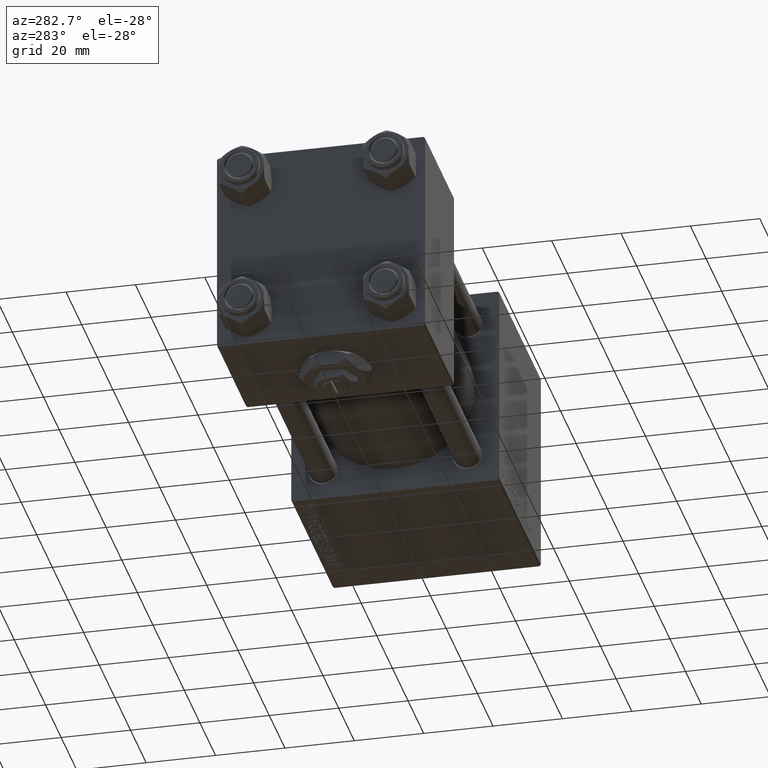
[diagram: clean part render]
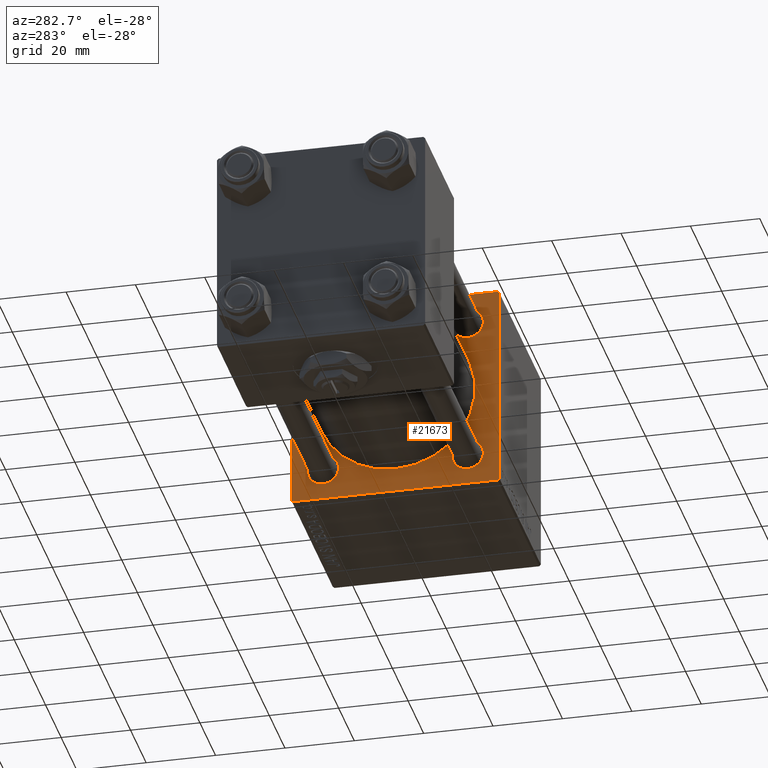
[diagram: same view with one face highlighted and labeled with its STEP entity id]
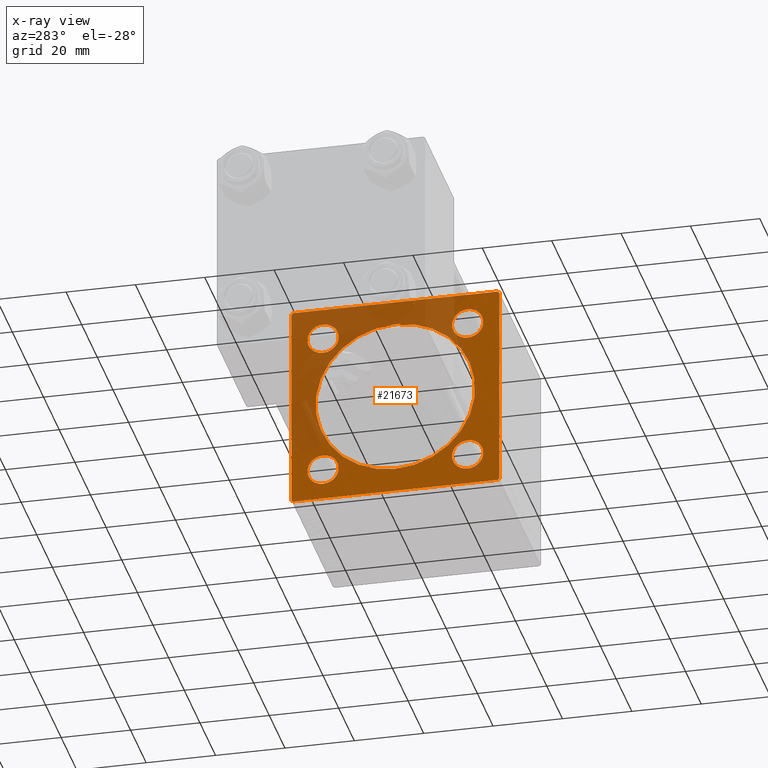
[diagram: x-ray of the same camera — body ghosted, the highlighted face saturated]
A machine part, auxiliary view. The second image highlights one B-rep face of the part: STEP entity #21673.
The next image is the same camera in x-ray: the body ghosted, the highlighted face saturated — about 41% of this face is hidden behind the body in this view.
In plain terms, the highlighted planar face has unit normal (-1, 0, 0).
Its self-contained STEP definition (entity closure, byte-faithful):
#50 = FACE_BOUND ( 'NONE', #23976, .T. ) ;
#277 = EDGE_LOOP ( 'NONE', ( #18970, #2899 ) ) ;
#504 = VERTEX_POINT ( 'NONE', #15559 ) ;
#520 = VECTOR ( 'NONE', #14759, 1000.000000000000114 ) ;
#569 = FACE_BOUND ( 'NONE', #39215, .T. ) ;
#674 = VECTOR ( 'NONE', #3492, 1000.000000000000000 ) ;
#1126 = DIRECTION ( 'NONE',  ( 1.000000000000000000, 0.000000000000000000, 0.000000000000000000 ) ) ;
#1169 = EDGE_CURVE ( 'NONE', #29317, #51760, #24532, .T. ) ;
#1211 = CARTESIAN_POINT ( 'NONE',  ( 95.00000000000000000, -30.00000000000000000, 29.49999999999999289 ) ) ;
#1345 = CARTESIAN_POINT ( 'NONE',  ( 95.00000000000000000, -2.602085213965210642E-15, 23.00000000000000000 ) ) ;
#1467 = ORIENTED_EDGE ( 'NONE', *, *, #45037, .T. ) ;
#1657 = EDGE_LOOP ( 'NONE', ( #38635, #3992, #32586, #19109, #34009, #50898, #23393, #1467 ) ) ;
#2848 = DIRECTION ( 'NONE',  ( 0.000000000000000000, 0.000000000000000000, 1.000000000000000000 ) ) ;
#2899 = ORIENTED_EDGE ( 'NONE', *, *, #32178, .T. ) ;
#3244 = CARTESIAN_POINT ( 'NONE',  ( 95.00000000000000000, 20.84999999999999787, 20.85000000000000142 ) ) ;
#3492 = DIRECTION ( 'NONE',  ( 0.000000000000000000, 0.000000000000000000, -1.000000000000000000 ) ) ;
#3681 = CIRCLE ( 'NONE', #13768, 4.500000000000007105 ) ;
#3992 = ORIENTED_EDGE ( 'NONE', *, *, #1169, .T. ) ;
#4001 = DIRECTION ( 'NONE',  ( -1.000000000000000000, 0.000000000000000000, -0.000000000000000000 ) ) ;
#4214 = VERTEX_POINT ( 'NONE', #50271 ) ;
#4216 = CARTESIAN_POINT ( 'NONE',  ( 95.00000000000000000, 30.00000000000000000, -29.99999999999999289 ) ) ;
#4223 = DIRECTION ( 'NONE',  ( 0.000000000000000000, 0.7071067811865474617, -0.7071067811865474617 ) ) ;
#4427 = LINE ( 'NONE', #28582, #35736 ) ;
#4642 = VERTEX_POINT ( 'NONE', #48917 ) ;
#4809 = DIRECTION ( 'NONE',  ( 1.000000000000000000, -0.000000000000000000, 0.000000000000000000 ) ) ;
#5331 = CARTESIAN_POINT ( 'NONE',  ( 95.00000000000000000, -29.50000000000000000, -30.00000000000000000 ) ) ;
#5362 = DIRECTION ( 'NONE',  ( 1.000000000000000000, -0.000000000000000000, 0.000000000000000000 ) ) ;
#5587 = DIRECTION ( 'NONE',  ( 0.000000000000000000, 0.000000000000000000, -1.000000000000000000 ) ) ;
#5749 = DIRECTION ( 'NONE',  ( -0.000000000000000000, 0.000000000000000000, 1.000000000000000000 ) ) ;
#5902 = DIRECTION ( 'NONE',  ( 1.000000000000000000, -0.000000000000000000, 0.000000000000000000 ) ) ;
#6193 = CIRCLE ( 'NONE', #21294, 4.500000000000007105 ) ;
#6597 = VERTEX_POINT ( 'NONE', #18314 ) ;
#7857 = VERTEX_POINT ( 'NONE', #10888 ) ;
#8489 = DIRECTION ( 'NONE',  ( 0.000000000000000000, 0.000000000000000000, 1.000000000000000000 ) ) ;
#8786 = CARTESIAN_POINT ( 'NONE',  ( 95.00000000000000000, 29.50000000000000000, -29.99999999999999289 ) ) ;
#9464 = CARTESIAN_POINT ( 'NONE',  ( 95.00000000000000000, -20.84999999999999076, -16.34999999999999787 ) ) ;
#9538 = CARTESIAN_POINT ( 'NONE',  ( 95.00000000000000000, -29.74999999999999645, -29.74999999999999645 ) ) ;
#9556 = CARTESIAN_POINT ( 'NONE',  ( 95.00000000000000000, -20.84999999999999076, -20.85000000000000497 ) ) ;
#9871 = EDGE_CURVE ( 'NONE', #18555, #4214, #3681, .T. ) ;
#10563 = ORIENTED_EDGE ( 'NONE', *, *, #9871, .T. ) ;
#10888 = CARTESIAN_POINT ( 'NONE',  ( 95.00000000000000000, -20.84999999999999076, 25.35000000000001208 ) ) ;
#10926 = ORIENTED_EDGE ( 'NONE', *, *, #35091, .T. ) ;
#11222 = VECTOR ( 'NONE', #4223, 1000.000000000000114 ) ;
#11787 = EDGE_CURVE ( 'NONE', #50918, #33183, #38102, .T. ) ;
#12104 = LINE ( 'NONE', #4216, #39235 ) ;
#12800 = ORIENTED_EDGE ( 'NONE', *, *, #32869, .T. ) ;
#13728 = VERTEX_POINT ( 'NONE', #1211 ) ;
#13768 = AXIS2_PLACEMENT_3D ( 'NONE', #14735, #34433, #37861 ) ;
#14561 = DIRECTION ( 'NONE',  ( 0.000000000000000000, 0.000000000000000000, 1.000000000000000000 ) ) ;
#14735 = CARTESIAN_POINT ( 'NONE',  ( 95.00000000000000000, -20.84999999999999076, -20.85000000000000497 ) ) ;
#14759 = DIRECTION ( 'NONE',  ( -0.000000000000000000, 0.7071067811865474617, 0.7071067811865474617 ) ) ;
#14965 = EDGE_CURVE ( 'NONE', #4214, #18555, #18119, .T. ) ;
#15471 = AXIS2_PLACEMENT_3D ( 'NONE', #42138, #41886, #50017 ) ;
#15559 = CARTESIAN_POINT ( 'NONE',  ( 95.00000000000000000, 2.146024240737012665E-16, -23.00000000000000000 ) ) ;
#15787 = DIRECTION ( 'NONE',  ( 0.000000000000000000, -1.000000000000000000, -1.156482317317871478E-16 ) ) ;
#16909 = DIRECTION ( 'NONE',  ( 0.000000000000000000, -0.7071067811865474617, 0.7071067811865474617 ) ) ;
#17445 = VERTEX_POINT ( 'NONE', #50942 ) ;
#17631 = EDGE_LOOP ( 'NONE', ( #24091, #10926 ) ) ;
#17963 = DIRECTION ( 'NONE',  ( 0.000000000000000000, 0.000000000000000000, 1.000000000000000000 ) ) ;
#18119 = CIRCLE ( 'NONE', #47485, 4.500000000000007105 ) ;
#18171 = CARTESIAN_POINT ( 'NONE',  ( 95.00000000000000000, 30.00000000000000000, 30.00000000000000000 ) ) ;
#18314 = CARTESIAN_POINT ( 'NONE',  ( 95.00000000000000000, 20.84999999999999787, -25.35000000000000853 ) ) ;
#18540 = LINE ( 'NONE', #46903, #35012 ) ;
#18555 = VERTEX_POINT ( 'NONE', #9464 ) ;
#18970 = ORIENTED_EDGE ( 'NONE', *, *, #46052, .T. ) ;
#19109 = ORIENTED_EDGE ( 'NONE', *, *, #38354, .T. ) ;
#19215 = CIRCLE ( 'NONE', #51068, 23.00000000000000000 ) ;
#19273 = CARTESIAN_POINT ( 'NONE',  ( 95.00000000000000000, 30.00000000000000000, 30.00000000000000000 ) ) ;
#19328 = VERTEX_POINT ( 'NONE', #39995 ) ;
#19878 = DIRECTION ( 'NONE',  ( 1.000000000000000000, 0.000000000000000000, 0.000000000000000000 ) ) ;
#20030 = VERTEX_POINT ( 'NONE', #51686 ) ;
#21294 = AXIS2_PLACEMENT_3D ( 'NONE', #50289, #5902, #14561 ) ;
#21673 = ADVANCED_FACE ( 'NONE', ( #44697, #50, #48128, #569, #44189, #32606 ), #36042, .T. ) ;
#22427 = VECTOR ( 'NONE', #41550, 1000.000000000000000 ) ;
#22430 = VERTEX_POINT ( 'NONE', #8786 ) ;
#22706 = EDGE_CURVE ( 'NONE', #20030, #40772, #43430, .T. ) ;
#23212 = EDGE_CURVE ( 'NONE', #34601, #7857, #25816, .T. ) ;
#23253 = AXIS2_PLACEMENT_3D ( 'NONE', #3244, #38714, #31333 ) ;
#23393 = ORIENTED_EDGE ( 'NONE', *, *, #22706, .T. ) ;
#23976 = EDGE_LOOP ( 'NONE', ( #44839, #37804 ) ) ;
#24091 = ORIENTED_EDGE ( 'NONE', *, *, #24636, .T. ) ;
#24135 = AXIS2_PLACEMENT_3D ( 'NONE', #45670, #42515, #2848 ) ;
#24532 = LINE ( 'NONE', #9538, #42214 ) ;
#24636 = EDGE_CURVE ( 'NONE', #48720, #504, #19215, .T. ) ;
#24965 = AXIS2_PLACEMENT_3D ( 'NONE', #26229, #33333, #25701 ) ;
#24989 = CARTESIAN_POINT ( 'NONE',  ( 95.00000000000000000, 0.000000000000000000, 0.000000000000000000 ) ) ;
#25410 = DIRECTION ( 'NONE',  ( 0.000000000000000000, 0.000000000000000000, -1.000000000000000000 ) ) ;
#25701 = DIRECTION ( 'NONE',  ( 0.000000000000000000, 0.000000000000000000, 1.000000000000000000 ) ) ;
#25789 = CARTESIAN_POINT ( 'NONE',  ( 95.00000000000000000, 20.84999999999999787, 25.35000000000000853 ) ) ;
#25816 = CIRCLE ( 'NONE', #24965, 4.500000000000007105 ) ;
#26229 = CARTESIAN_POINT ( 'NONE',  ( 95.00000000000000000, -20.84999999999999076, 20.85000000000000497 ) ) ;
#26619 = AXIS2_PLACEMENT_3D ( 'NONE', #24989, #4001, #5749 ) ;
#28009 = AXIS2_PLACEMENT_3D ( 'NONE', #44471, #4809, #8489 ) ;
#28582 = CARTESIAN_POINT ( 'NONE',  ( 95.00000000000000000, -30.00000000000000000, 29.99999999999999289 ) ) ;
#28892 = CARTESIAN_POINT ( 'NONE',  ( 95.00000000000000000, 29.74999999999999645, 29.74999999999999645 ) ) ;
#29317 = VERTEX_POINT ( 'NONE', #5331 ) ;
#31077 = CARTESIAN_POINT ( 'NONE',  ( 95.00000000000000000, 30.00000000000000000, -29.49999999999997868 ) ) ;
#31287 = LINE ( 'NONE', #35241, #520 ) ;
#31333 = DIRECTION ( 'NONE',  ( 0.000000000000000000, 0.000000000000000000, 1.000000000000000000 ) ) ;
#31410 = DIRECTION ( 'NONE',  ( 0.000000000000000000, 0.000000000000000000, -1.000000000000000000 ) ) ;
#31412 = AXIS2_PLACEMENT_3D ( 'NONE', #39054, #19878, #31410 ) ;
#31634 = ORIENTED_EDGE ( 'NONE', *, *, #14965, .T. ) ;
#32178 = EDGE_CURVE ( 'NONE', #6597, #19328, #38924, .T. ) ;
#32310 = LINE ( 'NONE', #28892, #11222 ) ;
#32467 = EDGE_CURVE ( 'NONE', #17445, #20030, #32310, .T. ) ;
#32586 = ORIENTED_EDGE ( 'NONE', *, *, #37799, .F. ) ;
#32606 = FACE_OUTER_BOUND ( 'NONE', #1657, .T. ) ;
#32869 = EDGE_CURVE ( 'NONE', #7857, #34601, #6193, .T. ) ;
#33183 = VERTEX_POINT ( 'NONE', #25789 ) ;
#33333 = DIRECTION ( 'NONE',  ( 1.000000000000000000, -0.000000000000000000, 0.000000000000000000 ) ) ;
#33958 = CIRCLE ( 'NONE', #31412, 23.00000000000000000 ) ;
#34009 = ORIENTED_EDGE ( 'NONE', *, *, #40944, .F. ) ;
#34433 = DIRECTION ( 'NONE',  ( 1.000000000000000000, -0.000000000000000000, 0.000000000000000000 ) ) ;
#34601 = VERTEX_POINT ( 'NONE', #37611 ) ;
#35012 = VECTOR ( 'NONE', #46635, 1000.000000000000114 ) ;
#35091 = EDGE_CURVE ( 'NONE', #504, #48720, #33958, .T. ) ;
#35241 = CARTESIAN_POINT ( 'NONE',  ( 95.00000000000000000, -29.74999999999999645, 29.74999999999999645 ) ) ;
#35736 = VECTOR ( 'NONE', #25410, 1000.000000000000000 ) ;
#36042 = PLANE ( 'NONE',  #26619 ) ;
#37611 = CARTESIAN_POINT ( 'NONE',  ( 95.00000000000000000, -20.84999999999999076, 16.34999999999999787 ) ) ;
#37799 = EDGE_CURVE ( 'NONE', #13728, #51760, #4427, .T. ) ;
#37804 = ORIENTED_EDGE ( 'NONE', *, *, #11787, .T. ) ;
#37861 = DIRECTION ( 'NONE',  ( 0.000000000000000000, 0.000000000000000000, 1.000000000000000000 ) ) ;
#38102 = CIRCLE ( 'NONE', #15471, 4.500000000000007105 ) ;
#38354 = EDGE_CURVE ( 'NONE', #13728, #4642, #31287, .T. ) ;
#38635 = ORIENTED_EDGE ( 'NONE', *, *, #41063, .T. ) ;
#38714 = DIRECTION ( 'NONE',  ( 1.000000000000000000, -0.000000000000000000, 0.000000000000000000 ) ) ;
#38924 = CIRCLE ( 'NONE', #28009, 4.500000000000007105 ) ;
#39054 = CARTESIAN_POINT ( 'NONE',  ( 95.00000000000000000, -2.602085213965210642E-15, 0.000000000000000000 ) ) ;
#39215 = EDGE_LOOP ( 'NONE', ( #10563, #31634 ) ) ;
#39235 = VECTOR ( 'NONE', #15787, 1000.000000000000000 ) ;
#39976 = ORIENTED_EDGE ( 'NONE', *, *, #23212, .T. ) ;
#39995 = CARTESIAN_POINT ( 'NONE',  ( 95.00000000000000000, 20.84999999999999787, -16.34999999999999432 ) ) ;
#40772 = VERTEX_POINT ( 'NONE', #31077 ) ;
#40784 = EDGE_CURVE ( 'NONE', #33183, #50918, #45896, .T. ) ;
#40944 = EDGE_CURVE ( 'NONE', #17445, #4642, #49941, .T. ) ;
#41063 = EDGE_CURVE ( 'NONE', #22430, #29317, #12104, .T. ) ;
#41139 = CARTESIAN_POINT ( 'NONE',  ( 95.00000000000000000, 20.84999999999999787, 16.34999999999999432 ) ) ;
#41550 = DIRECTION ( 'NONE',  ( 0.000000000000000000, -1.000000000000000000, -1.156482317317871478E-16 ) ) ;
#41569 = CARTESIAN_POINT ( 'NONE',  ( 95.00000000000000000, -2.602085213965210642E-15, 0.000000000000000000 ) ) ;
#41886 = DIRECTION ( 'NONE',  ( 1.000000000000000000, -0.000000000000000000, 0.000000000000000000 ) ) ;
#42138 = CARTESIAN_POINT ( 'NONE',  ( 95.00000000000000000, 20.84999999999999787, 20.85000000000000142 ) ) ;
#42178 = EDGE_LOOP ( 'NONE', ( #12800, #39976 ) ) ;
#42214 = VECTOR ( 'NONE', #16909, 1000.000000000000114 ) ;
#42515 = DIRECTION ( 'NONE',  ( 1.000000000000000000, -0.000000000000000000, 0.000000000000000000 ) ) ;
#42594 = CIRCLE ( 'NONE', #24135, 4.500000000000007105 ) ;
#43430 = LINE ( 'NONE', #19273, #674 ) ;
#44189 = FACE_BOUND ( 'NONE', #17631, .T. ) ;
#44380 = CARTESIAN_POINT ( 'NONE',  ( 95.00000000000000000, -30.00000000000000000, -29.49999999999998579 ) ) ;
#44471 = CARTESIAN_POINT ( 'NONE',  ( 95.00000000000000000, 20.84999999999999787, -20.85000000000000142 ) ) ;
#44697 = FACE_BOUND ( 'NONE', #42178, .T. ) ;
#44839 = ORIENTED_EDGE ( 'NONE', *, *, #40784, .T. ) ;
#45037 = EDGE_CURVE ( 'NONE', #40772, #22430, #18540, .T. ) ;
#45670 = CARTESIAN_POINT ( 'NONE',  ( 95.00000000000000000, 20.84999999999999787, -20.85000000000000142 ) ) ;
#45896 = CIRCLE ( 'NONE', #23253, 4.500000000000007105 ) ;
#46052 = EDGE_CURVE ( 'NONE', #19328, #6597, #42594, .T. ) ;
#46635 = DIRECTION ( 'NONE',  ( -0.000000000000000000, -0.7071067811865474617, -0.7071067811865474617 ) ) ;
#46903 = CARTESIAN_POINT ( 'NONE',  ( 95.00000000000000000, 29.74999999999999645, -29.74999999999999645 ) ) ;
#47485 = AXIS2_PLACEMENT_3D ( 'NONE', #9556, #5362, #17963 ) ;
#48128 = FACE_BOUND ( 'NONE', #277, .T. ) ;
#48720 = VERTEX_POINT ( 'NONE', #1345 ) ;
#48917 = CARTESIAN_POINT ( 'NONE',  ( 95.00000000000000000, -29.50000000000000000, 29.99999999999999289 ) ) ;
#49941 = LINE ( 'NONE', #18171, #22427 ) ;
#50017 = DIRECTION ( 'NONE',  ( 0.000000000000000000, 0.000000000000000000, 1.000000000000000000 ) ) ;
#50271 = CARTESIAN_POINT ( 'NONE',  ( 95.00000000000000000, -20.84999999999999076, -25.35000000000001208 ) ) ;
#50289 = CARTESIAN_POINT ( 'NONE',  ( 95.00000000000000000, -20.84999999999999076, 20.85000000000000497 ) ) ;
#50898 = ORIENTED_EDGE ( 'NONE', *, *, #32467, .T. ) ;
#50918 = VERTEX_POINT ( 'NONE', #41139 ) ;
#50942 = CARTESIAN_POINT ( 'NONE',  ( 95.00000000000000000, 29.50000000000000000, 30.00000000000000000 ) ) ;
#51068 = AXIS2_PLACEMENT_3D ( 'NONE', #41569, #1126, #5587 ) ;
#51686 = CARTESIAN_POINT ( 'NONE',  ( 95.00000000000000000, 30.00000000000000000, 29.50000000000000000 ) ) ;
#51760 = VERTEX_POINT ( 'NONE', #44380 ) ;